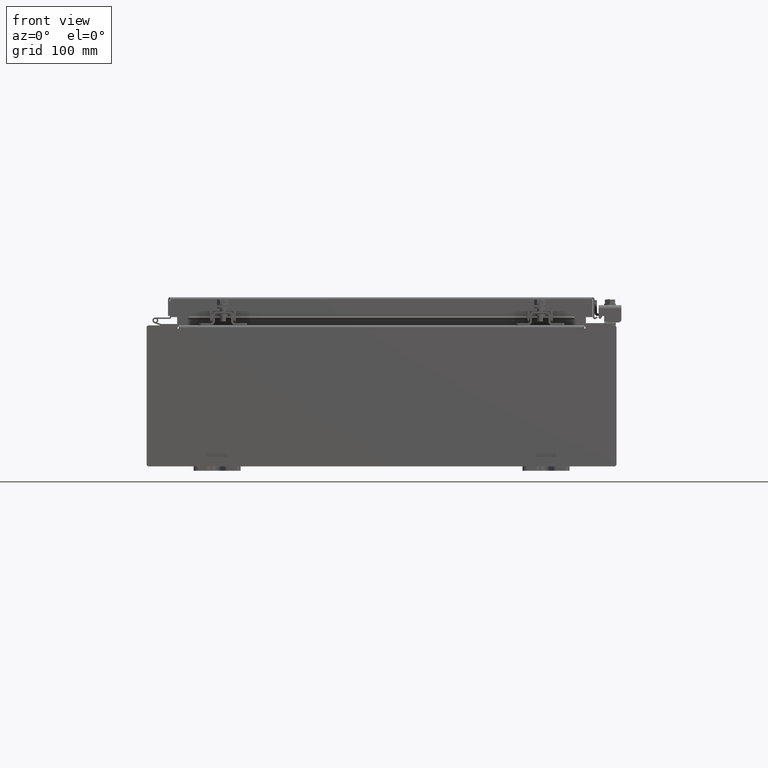
[diagram: clean part render]
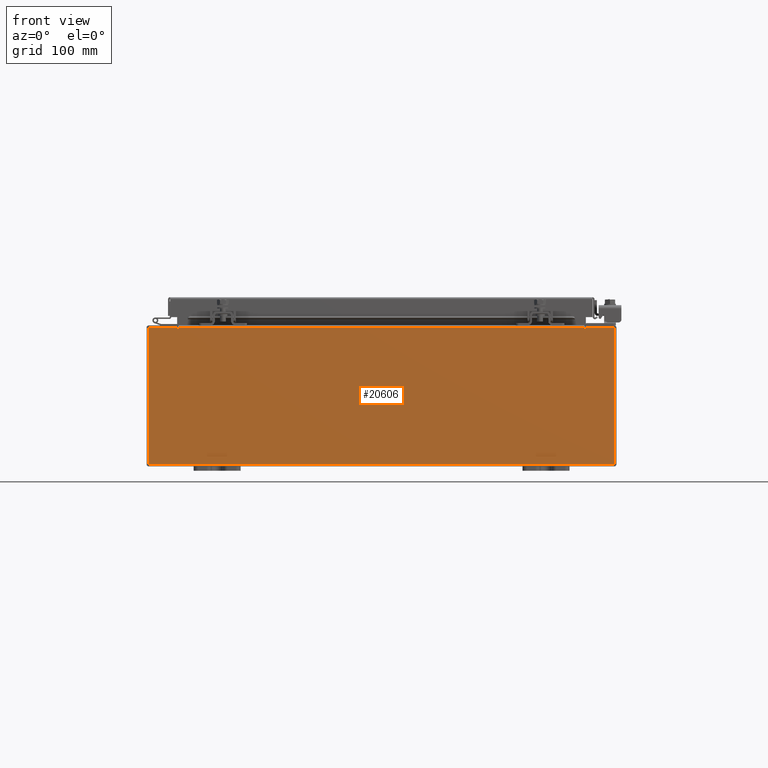
[diagram: same view with one face highlighted and labeled with its STEP entity id]
A machine part, front view. The second image highlights one B-rep face of the part: STEP entity #20606.
In plain terms, the highlighted planar face has unit normal (-0, 1, -0).
Its self-contained STEP definition (entity closure, byte-faithful):
#107 = VECTOR ( 'NONE', #22241, 39.37007874015748100 ) ;
#475 = LINE ( 'NONE', #7707, #12595 ) ;
#1078 = AXIS2_PLACEMENT_3D ( 'NONE', #6285, #22208, #8567 ) ;
#1576 = LINE ( 'NONE', #1954, #6945 ) ;
#1934 = VERTEX_POINT ( 'NONE', #24127 ) ;
#1954 = CARTESIAN_POINT ( 'NONE',  ( 9.925300000000000000, 0.0000000000000000000, 2.925300000000000500 ) ) ;
#2001 = LINE ( 'NONE', #18075, #25557 ) ;
#2514 = CARTESIAN_POINT ( 'NONE',  ( -9.925300000000000000, 0.0000000000000000000, 2.925300000000000500 ) ) ;
#3756 = VECTOR ( 'NONE', #19400, 39.37007874015748100 ) ;
#3920 = VERTEX_POINT ( 'NONE', #23453 ) ;
#4156 = CARTESIAN_POINT ( 'NONE',  ( 9.925300000000000000, 0.0000000000000000000, -2.925299999999999600 ) ) ;
#4454 = DIRECTION ( 'NONE',  ( 1.000000000000000000, 0.0000000000000000000, 0.0000000000000000000 ) ) ;
#4608 = ORIENTED_EDGE ( 'NONE', *, *, #23419, .F. ) ;
#4785 = LINE ( 'NONE', #2514, #22937 ) ;
#5449 = CARTESIAN_POINT ( 'NONE',  ( -8.637199999999996400, 1.024442997624098700E-016, 2.912300000000000600 ) ) ;
#5643 = LINE ( 'NONE', #20730, #28427 ) ;
#5771 = CARTESIAN_POINT ( 'NONE',  ( 8.674549999999813500, -0.0000000000000000000, -5.647877341832707700E-013 ) ) ;
#5867 = VERTEX_POINT ( 'NONE', #6941 ) ;
#5912 = LINE ( 'NONE', #10089, #28682 ) ;
#6285 = CARTESIAN_POINT ( 'NONE',  ( -8.655874999999996400, 0.0000000000000000000, 2.874950000000000600 ) ) ;
#6649 = DIRECTION ( 'NONE',  ( -0.0000000000000000000, 1.000000000000000000, -0.0000000000000000000 ) ) ;
#6941 = CARTESIAN_POINT ( 'NONE',  ( 8.674550000000000000, 0.0000000000000000000, 2.874950000000000600 ) ) ;
#6945 = VECTOR ( 'NONE', #13298, 39.37007874015748100 ) ;
#7320 = VERTEX_POINT ( 'NONE', #4156 ) ;
#7468 = VECTOR ( 'NONE', #15440, 39.37007874015748100 ) ;
#7707 = CARTESIAN_POINT ( 'NONE',  ( -9.925300000000000000, 0.0000000000000000000, -2.925299999999999600 ) ) ;
#7741 = AXIS2_PLACEMENT_3D ( 'NONE', #10723, #26724, #13033 ) ;
#8413 = VECTOR ( 'NONE', #22595, 39.37007874015748100 ) ;
#8567 = DIRECTION ( 'NONE',  ( 0.0000000000000000000, 0.0000000000000000000, -1.000000000000000000 ) ) ;
#9031 = ORIENTED_EDGE ( 'NONE', *, *, #9701, .T. ) ;
#9701 = EDGE_CURVE ( 'NONE', #20511, #22021, #5643, .T. ) ;
#10089 = CARTESIAN_POINT ( 'NONE',  ( -8.674549999999996400, -0.0000000000000000000, 0.0000000000000000000 ) ) ;
#10439 = ORIENTED_EDGE ( 'NONE', *, *, #16018, .T. ) ;
#10723 = CARTESIAN_POINT ( 'NONE',  ( 0.0000000000000000000, 0.0000000000000000000, 0.0000000000000000000 ) ) ;
#10761 = LINE ( 'NONE', #19961, #107 ) ;
#10930 = ORIENTED_EDGE ( 'NONE', *, *, #12362, .F. ) ;
#12085 = VERTEX_POINT ( 'NONE', #5449 ) ;
#12362 = EDGE_CURVE ( 'NONE', #17467, #1934, #19586, .T. ) ;
#12595 = VECTOR ( 'NONE', #25841, 39.37007874015748100 ) ;
#12816 = EDGE_CURVE ( 'NONE', #5867, #17467, #14178, .T. ) ;
#12943 = PLANE ( 'NONE',  #7741 ) ;
#13033 = DIRECTION ( 'NONE',  ( 0.0000000000000000000, -0.0000000000000000000, -1.000000000000000000 ) ) ;
#13298 = DIRECTION ( 'NONE',  ( 0.0000000000000000000, 0.0000000000000000000, -1.000000000000000000 ) ) ;
#14098 = CARTESIAN_POINT ( 'NONE',  ( -8.674549999999996400, 0.0000000000000000000, 2.925300000000000500 ) ) ;
#14178 = CIRCLE ( 'NONE', #18632, 0.01867500000000003900 ) ;
#15003 = ORIENTED_EDGE ( 'NONE', *, *, #26488, .T. ) ;
#15150 = LINE ( 'NONE', #15696, #8413 ) ;
#15440 = DIRECTION ( 'NONE',  ( 0.0000000000000000000, 0.0000000000000000000, 1.000000000000000000 ) ) ;
#15694 = CARTESIAN_POINT ( 'NONE',  ( 9.925300000000000000, 0.0000000000000000000, 2.925300000000000500 ) ) ;
#15696 = CARTESIAN_POINT ( 'NONE',  ( -8.637199999999996400, -0.0000000000000000000, 0.0000000000000000000 ) ) ;
#16018 = EDGE_CURVE ( 'NONE', #12085, #1934, #10761, .T. ) ;
#16591 = ORIENTED_EDGE ( 'NONE', *, *, #25228, .T. ) ;
#16894 = VERTEX_POINT ( 'NONE', #14098 ) ;
#16922 = EDGE_LOOP ( 'NONE', ( #4608, #24256, #26597, #10439, #10930, #17084, #18178, #28900, #15003, #28643, #9031, #16591 ) ) ;
#16990 = DIRECTION ( 'NONE',  ( 0.0000000000000000000, 0.0000000000000000000, 1.000000000000000000 ) ) ;
#17084 = ORIENTED_EDGE ( 'NONE', *, *, #12816, .F. ) ;
#17246 = CARTESIAN_POINT ( 'NONE',  ( -9.925300000000000000, 0.0000000000000000000, -2.925299999999999600 ) ) ;
#17278 = LINE ( 'NONE', #5771, #3756 ) ;
#17302 = CIRCLE ( 'NONE', #1078, 0.01867500000000003900 ) ;
#17467 = VERTEX_POINT ( 'NONE', #23444 ) ;
#18075 = CARTESIAN_POINT ( 'NONE',  ( -9.925300000000000000, 0.0000000000000000000, 2.925300000000000500 ) ) ;
#18077 = VERTEX_POINT ( 'NONE', #21438 ) ;
#18178 = ORIENTED_EDGE ( 'NONE', *, *, #23461, .F. ) ;
#18632 = AXIS2_PLACEMENT_3D ( 'NONE', #20301, #6649, #22577 ) ;
#19071 = CARTESIAN_POINT ( 'NONE',  ( -9.925300000000000000, 0.0000000000000000000, 2.925300000000000500 ) ) ;
#19400 = DIRECTION ( 'NONE',  ( -6.510859170600007400E-014, 0.0000000000000000000, -1.000000000000000000 ) ) ;
#19586 = LINE ( 'NONE', #29194, #7468 ) ;
#19961 = CARTESIAN_POINT ( 'NONE',  ( -8.637200000000000000, 1.024442997624098700E-016, 2.912300000000000600 ) ) ;
#20301 = CARTESIAN_POINT ( 'NONE',  ( 8.655875000000000000, 0.0000000000000000000, 2.874950000000000600 ) ) ;
#20511 = VERTEX_POINT ( 'NONE', #17246 ) ;
#20606 = ADVANCED_FACE ( 'NONE', ( #26733 ), #12943, .F. ) ;
#20730 = CARTESIAN_POINT ( 'NONE',  ( -9.925300000000000000, 0.0000000000000000000, 2.925300000000000500 ) ) ;
#20768 = DIRECTION ( 'NONE',  ( 1.000000000000000000, 0.0000000000000000000, 0.0000000000000000000 ) ) ;
#20824 = DIRECTION ( 'NONE',  ( -0.0000000000000000000, -0.0000000000000000000, 1.000000000000000000 ) ) ;
#21438 = CARTESIAN_POINT ( 'NONE',  ( -8.674549999999996400, 0.0000000000000000000, 2.874950000000000600 ) ) ;
#22021 = VERTEX_POINT ( 'NONE', #19071 ) ;
#22208 = DIRECTION ( 'NONE',  ( -0.0000000000000000000, 1.000000000000000000, -0.0000000000000000000 ) ) ;
#22241 = DIRECTION ( 'NONE',  ( 1.000000000000000000, 0.0000000000000000000, 0.0000000000000000000 ) ) ;
#22577 = DIRECTION ( 'NONE',  ( 0.0000000000000000000, 0.0000000000000000000, -1.000000000000000000 ) ) ;
#22595 = DIRECTION ( 'NONE',  ( 0.0000000000000000000, 0.0000000000000000000, -1.000000000000000000 ) ) ;
#22913 = EDGE_CURVE ( 'NONE', #3920, #18077, #17302, .T. ) ;
#22937 = VECTOR ( 'NONE', #20768, 39.37007874015748100 ) ;
#23027 = EDGE_CURVE ( 'NONE', #12085, #3920, #15150, .T. ) ;
#23419 = EDGE_CURVE ( 'NONE', #18077, #16894, #5912, .T. ) ;
#23444 = CARTESIAN_POINT ( 'NONE',  ( 8.637200000000000000, 0.0000000000000000000, 2.874950000000000600 ) ) ;
#23453 = CARTESIAN_POINT ( 'NONE',  ( -8.637199999999996400, -0.0000000000000000000, 2.874950000000000600 ) ) ;
#23461 = EDGE_CURVE ( 'NONE', #26295, #5867, #17278, .T. ) ;
#24127 = CARTESIAN_POINT ( 'NONE',  ( 8.637200000000000000, 0.0000000000000000000, 2.912300000000000600 ) ) ;
#24256 = ORIENTED_EDGE ( 'NONE', *, *, #22913, .F. ) ;
#25228 = EDGE_CURVE ( 'NONE', #22021, #16894, #2001, .T. ) ;
#25557 = VECTOR ( 'NONE', #4454, 39.37007874015748100 ) ;
#25841 = DIRECTION ( 'NONE',  ( -1.000000000000000000, -0.0000000000000000000, -0.0000000000000000000 ) ) ;
#26295 = VERTEX_POINT ( 'NONE', #28578 ) ;
#26488 = EDGE_CURVE ( 'NONE', #26519, #7320, #1576, .T. ) ;
#26519 = VERTEX_POINT ( 'NONE', #15694 ) ;
#26597 = ORIENTED_EDGE ( 'NONE', *, *, #23027, .F. ) ;
#26724 = DIRECTION ( 'NONE',  ( 0.0000000000000000000, -1.000000000000000000, 0.0000000000000000000 ) ) ;
#26733 = FACE_OUTER_BOUND ( 'NONE', #16922, .T. ) ;
#27070 = EDGE_CURVE ( 'NONE', #26295, #26519, #4785, .T. ) ;
#27256 = EDGE_CURVE ( 'NONE', #7320, #20511, #475, .T. ) ;
#28427 = VECTOR ( 'NONE', #20824, 39.37007874015748100 ) ;
#28578 = CARTESIAN_POINT ( 'NONE',  ( 8.674550000000001800, 0.0000000000000000000, 2.925300000000000500 ) ) ;
#28643 = ORIENTED_EDGE ( 'NONE', *, *, #27256, .T. ) ;
#28682 = VECTOR ( 'NONE', #16990, 39.37007874015748100 ) ;
#28900 = ORIENTED_EDGE ( 'NONE', *, *, #27070, .T. ) ;
#29194 = CARTESIAN_POINT ( 'NONE',  ( 8.637200000000000000, 0.0000000000000000000, 0.0000000000000000000 ) ) ;